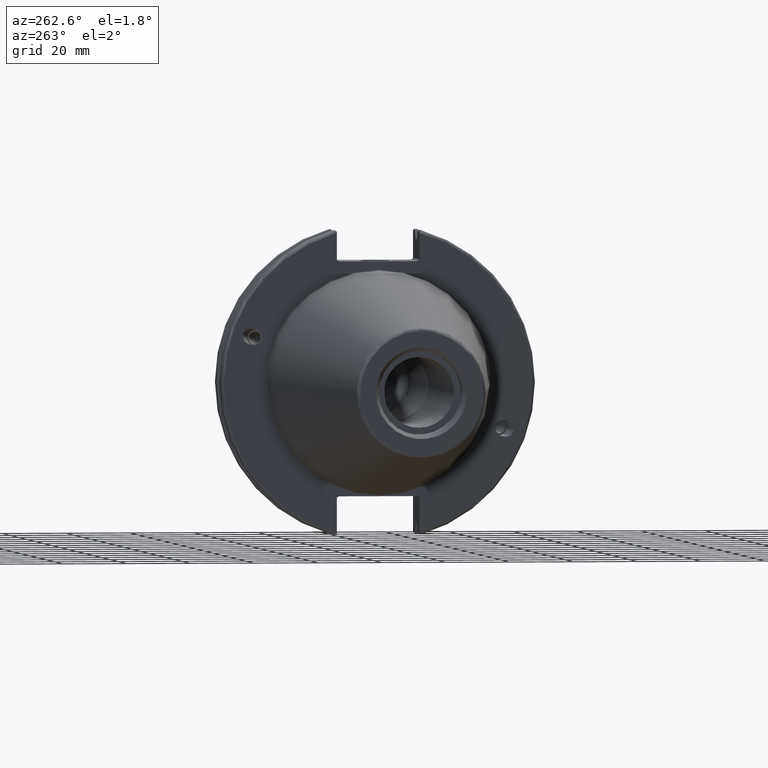
[diagram: clean part render]
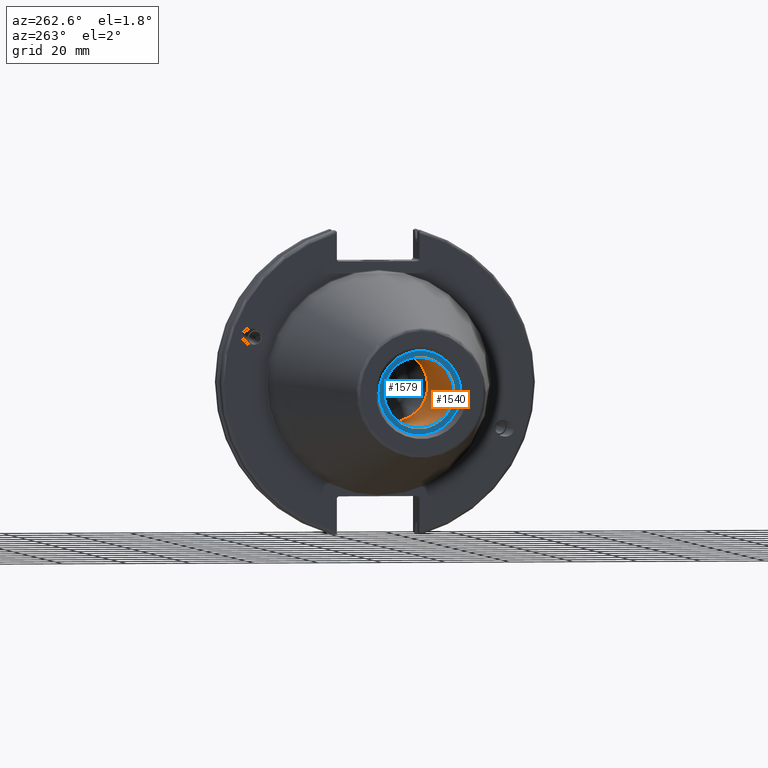
[diagram: same view with the hole feature highlighted: cylindrical wall and planar end face, labeled with their STEP entity ids]
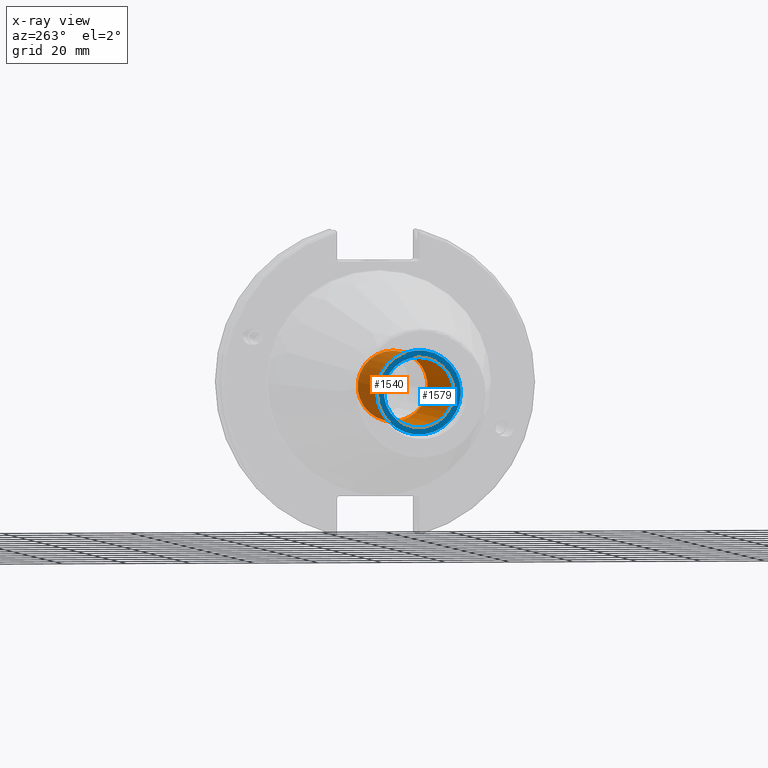
[diagram: x-ray of the same camera — body ghosted, the hole faces saturated]
A machine part, auxiliary view. The highlighted faces form one hole feature of diameter 21.971 mm: the cylindrical wall (entity #1540, orange) and its adjacent planar end face (entity #1579, blue) — they share a circular edge in the B-rep.
The next image is the same camera in x-ray (body ghosted, the hole faces saturated) — the bore reads through the body.
Wall:
#195=FACE_OUTER_BOUND('',#301,.T.);
#301=EDGE_LOOP('',(#1220,#1221,#1222,#1223));
#401=CIRCLE('',#1704,10.9855);
#402=CIRCLE('',#1706,10.9855);
#478=LINE('',#2854,#572);
#572=VECTOR('',#2024,10.9855);
#720=VERTEX_POINT('',#2848);
#721=VERTEX_POINT('',#2852);
#904=EDGE_CURVE('',#720,#720,#401,.T.);
#906=EDGE_CURVE('',#721,#721,#402,.T.);
#907=EDGE_CURVE('',#721,#720,#478,.T.);
#1220=ORIENTED_EDGE('',*,*,#906,.F.);
#1221=ORIENTED_EDGE('',*,*,#907,.T.);
#1222=ORIENTED_EDGE('',*,*,#904,.F.);
#1223=ORIENTED_EDGE('',*,*,#907,.F.);
#1487=CYLINDRICAL_SURFACE('',#1705,10.9855);
#1540=ADVANCED_FACE('',(#195),#1487,.F.);
#1704=AXIS2_PLACEMENT_3D('',#2849,#2017,#2018);
#1705=AXIS2_PLACEMENT_3D('',#2851,#2020,#2021);
#1706=AXIS2_PLACEMENT_3D('',#2853,#2022,#2023);
#2017=DIRECTION('center_axis',(-1.,0.,0.));
#2018=DIRECTION('ref_axis',(0.,0.,1.));
#2020=DIRECTION('center_axis',(-1.,0.,0.));
#2021=DIRECTION('ref_axis',(0.,0.,1.));
#2022=DIRECTION('center_axis',(1.,0.,0.));
#2023=DIRECTION('ref_axis',(0.,0.,1.));
#2024=DIRECTION('',(1.,0.,0.));
#2848=CARTESIAN_POINT('',(-31.6,-1.34533574120333E-15,-10.9855));
#2849=CARTESIAN_POINT('Origin',(-31.6,0.,0.));
#2851=CARTESIAN_POINT('Origin',(-66.6,0.,0.));
#2852=CARTESIAN_POINT('',(-95.25,1.34533574120333E-15,-10.9855));
#2853=CARTESIAN_POINT('Origin',(-95.25,0.,0.));
#2854=CARTESIAN_POINT('',(-66.6,-1.34533574120333E-15,-10.9855));
End face:
#103=FACE_BOUND('',#346,.T.);
#149=PLANE('',#1769);
#234=FACE_OUTER_BOUND('',#345,.T.);
#345=EDGE_LOOP('',(#1434));
#346=EDGE_LOOP('',(#1435));
#402=CIRCLE('',#1706,10.9855);
#427=CIRCLE('',#1770,13.1);
#721=VERTEX_POINT('',#2852);
#776=VERTEX_POINT('',#3152);
#906=EDGE_CURVE('',#721,#721,#402,.T.);
#1000=EDGE_CURVE('',#776,#776,#427,.T.);
#1434=ORIENTED_EDGE('',*,*,#1000,.F.);
#1435=ORIENTED_EDGE('',*,*,#906,.T.);
#1579=ADVANCED_FACE('',(#234,#103),#149,.T.);
#1706=AXIS2_PLACEMENT_3D('',#2853,#2022,#2023);
#1769=AXIS2_PLACEMENT_3D('',#3151,#2193,#2194);
#1770=AXIS2_PLACEMENT_3D('',#3153,#2195,#2196);
#2022=DIRECTION('center_axis',(1.,0.,0.));
#2023=DIRECTION('ref_axis',(0.,0.,1.));
#2193=DIRECTION('center_axis',(-1.,0.,0.));
#2194=DIRECTION('ref_axis',(0.,0.,1.));
#2195=DIRECTION('center_axis',(1.,0.,0.));
#2196=DIRECTION('ref_axis',(0.,0.,-1.));
#2852=CARTESIAN_POINT('',(-95.25,1.34533574120333E-15,-10.9855));
#2853=CARTESIAN_POINT('Origin',(-95.25,0.,0.));
#3151=CARTESIAN_POINT('Origin',(-95.25,13.1,0.));
#3152=CARTESIAN_POINT('',(-95.25,-13.1,-1.60428730688303E-15));
#3153=CARTESIAN_POINT('Origin',(-95.25,0.,0.));